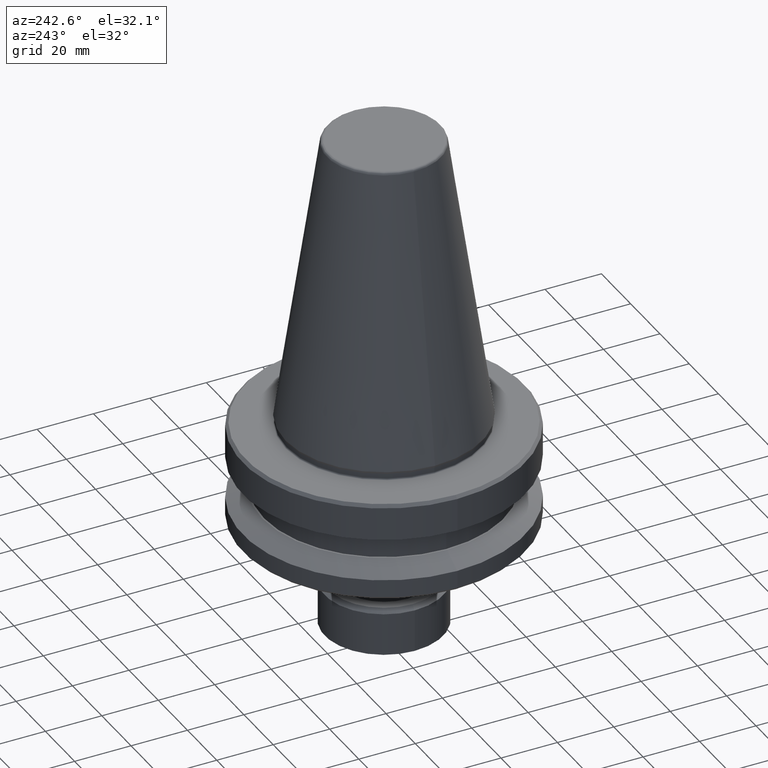
[diagram: clean part render]
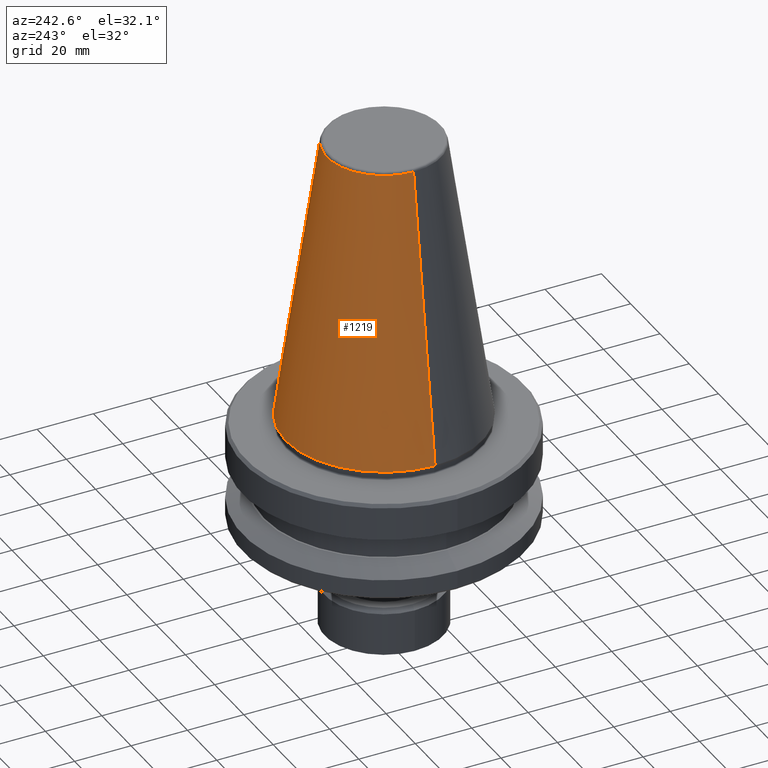
[diagram: same view with one face highlighted and labeled with its STEP entity id]
A machine part, auxiliary view. The second image highlights one B-rep face of the part: STEP entity #1219.
In plain terms, the highlighted conical surface has half-angle 8.297 deg.
Its self-contained STEP definition (entity closure, byte-faithful):
#29 = CIRCLE ( 'NONE', #1193, 20.20381645192181700 ) ;
#48 = VERTEX_POINT ( 'NONE', #766 ) ;
#68 = DIRECTION ( 'NONE',  ( 0.0000000000000000000, 0.0000000000000000000, -1.000000000000000000 ) ) ;
#119 = VERTEX_POINT ( 'NONE', #786 ) ;
#220 = VECTOR ( 'NONE', #1205, 1000.000000000000200 ) ;
#260 = ORIENTED_EDGE ( 'NONE', *, *, #1198, .T. ) ;
#274 = CARTESIAN_POINT ( 'NONE',  ( -20.20381645192181700, 0.0000000000000000000, 100.9443082234297000 ) ) ;
#322 = AXIS2_PLACEMENT_3D ( 'NONE', #386, #1042, #474 ) ;
#355 = DIRECTION ( 'NONE',  ( -0.0000000000000000000, -0.0000000000000000000, 1.000000000000000000 ) ) ;
#357 = CARTESIAN_POINT ( 'NONE',  ( 20.20381645192181700, 3.375666430431365100E-015, 100.9443082234297000 ) ) ;
#386 = CARTESIAN_POINT ( 'NONE',  ( 0.0000000000000000000, 0.0000000000000000000, 5.551115123125782700E-014 ) ) ;
#408 = AXIS2_PLACEMENT_3D ( 'NONE', #634, #68, #741 ) ;
#444 = CARTESIAN_POINT ( 'NONE',  ( 34.92499999999942900, 4.277078946022061500E-015, 5.551115123125782700E-014 ) ) ;
#450 = ORIENTED_EDGE ( 'NONE', *, *, #772, .T. ) ;
#457 = DIRECTION ( 'NONE',  ( -0.1443082234293857600, 0.0000000000000000000, -0.9895327870518765300 ) ) ;
#472 = EDGE_CURVE ( 'NONE', #511, #48, #1209, .T. ) ;
#474 = DIRECTION ( 'NONE',  ( 1.000000000000000000, 0.0000000000000000000, 0.0000000000000000000 ) ) ;
#511 = VERTEX_POINT ( 'NONE', #274 ) ;
#563 = ORIENTED_EDGE ( 'NONE', *, *, #1166, .F. ) ;
#634 = CARTESIAN_POINT ( 'NONE',  ( 0.0000000000000000000, 0.0000000000000000000, 5.551115123125782700E-014 ) ) ;
#666 = CIRCLE ( 'NONE', #322, 34.92499999999942900 ) ;
#669 = EDGE_LOOP ( 'NONE', ( #563, #260, #450, #1014 ) ) ;
#728 = LINE ( 'NONE', #444, #220 ) ;
#741 = DIRECTION ( 'NONE',  ( -1.000000000000000000, 0.0000000000000000000, 0.0000000000000000000 ) ) ;
#766 = CARTESIAN_POINT ( 'NONE',  ( -34.92499999999942900, 4.277078946022061500E-015, 5.551115123125782700E-014 ) ) ;
#772 = EDGE_CURVE ( 'NONE', #119, #48, #666, .T. ) ;
#786 = CARTESIAN_POINT ( 'NONE',  ( 34.92499999999942900, 0.0000000000000000000, 5.551115123125782700E-014 ) ) ;
#917 = CARTESIAN_POINT ( 'NONE',  ( 0.0000000000000000000, 0.0000000000000000000, 100.9443082234297000 ) ) ;
#954 = VECTOR ( 'NONE', #457, 1000.000000000000200 ) ;
#1001 = FACE_OUTER_BOUND ( 'NONE', #669, .T. ) ;
#1007 = DIRECTION ( 'NONE',  ( 1.000000000000000000, 0.0000000000000000000, 0.0000000000000000000 ) ) ;
#1014 = ORIENTED_EDGE ( 'NONE', *, *, #472, .F. ) ;
#1028 = CARTESIAN_POINT ( 'NONE',  ( -34.92499999999942900, 0.0000000000000000000, 5.551115123125782700E-014 ) ) ;
#1042 = DIRECTION ( 'NONE',  ( -0.0000000000000000000, -0.0000000000000000000, 1.000000000000000000 ) ) ;
#1164 = CONICAL_SURFACE ( 'NONE', #408, 34.92499999999942900, 0.1448138426689006000 ) ;
#1166 = EDGE_CURVE ( 'NONE', #1197, #511, #29, .T. ) ;
#1193 = AXIS2_PLACEMENT_3D ( 'NONE', #917, #355, #1007 ) ;
#1197 = VERTEX_POINT ( 'NONE', #357 ) ;
#1198 = EDGE_CURVE ( 'NONE', #1197, #119, #728, .T. ) ;
#1205 = DIRECTION ( 'NONE',  ( 0.1443082234293857600, 1.767266039134383800E-017, -0.9895327870518765300 ) ) ;
#1209 = LINE ( 'NONE', #1028, #954 ) ;
#1219 = ADVANCED_FACE ( 'NONE', ( #1001 ), #1164, .T. ) ;